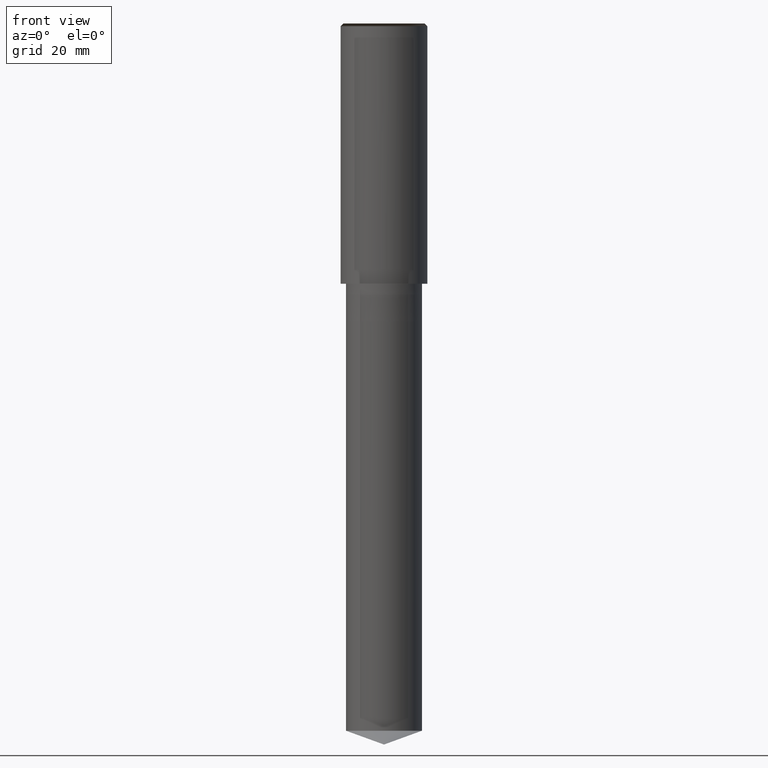
[diagram: clean part render]
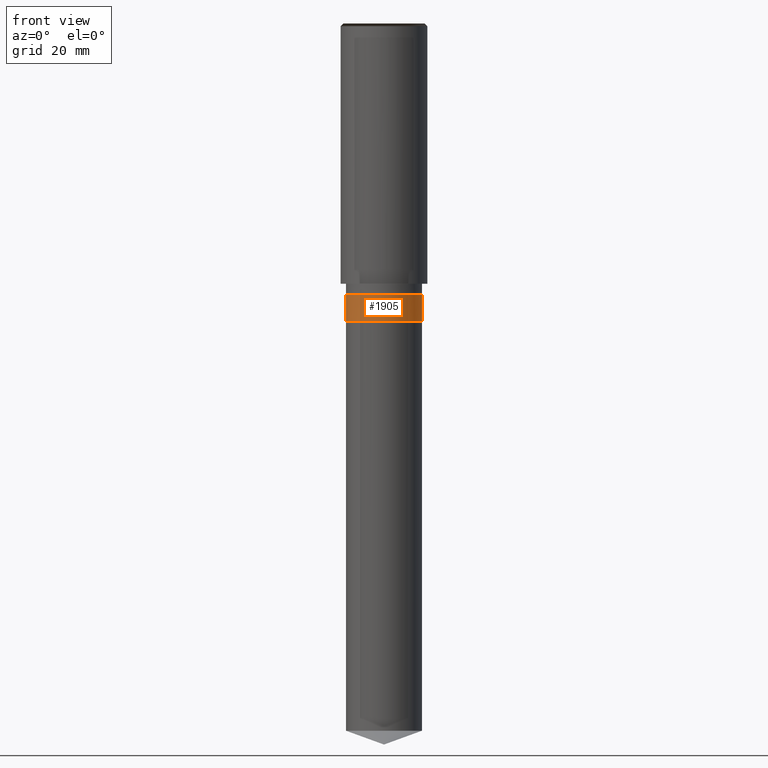
[diagram: same view with one face highlighted and labeled with its STEP entity id]
A machine part, front view. The second image highlights one B-rep face of the part: STEP entity #1905.
In plain terms, the highlighted face is a freeform B-spline surface patch.
Its self-contained STEP definition (entity closure, byte-faithful):
#1572=CARTESIAN_POINT('',(7.0,0.0,-7.0));
#1576=CARTESIAN_POINT('',(-7.0,0.0,-7.0));
#1581=CARTESIAN_POINT('',(-7.0,-7.0,-7.0));
#1582=CARTESIAN_POINT('',(0.0,-7.0,-7.0));
#1583=CARTESIAN_POINT('',(7.0,-7.0,-7.0));
#1584=CARTESIAN_POINT('',(7.0,0.0,-2.0));
#1588=CARTESIAN_POINT('',(-7.0,0.0,-2.0));
#1610=CARTESIAN_POINT('',(-7.0,-7.0,-2.0));
#1611=CARTESIAN_POINT('',(0.0,-7.0,-2.0));
#1612=CARTESIAN_POINT('',(7.0,-7.0,-2.0));
#1886=(
BOUNDED_SURFACE()
B_SPLINE_SURFACE(1,2,(
(#1576,#1581,#1582,#1583,#1572),
(#1588,#1610,#1611,#1612,#1584)
), .UNSPECIFIED.,.F.,.F.,.F.)
B_SPLINE_SURFACE_WITH_KNOTS((2,2),(3,2,3),(
0.0,1.0),(
0.0,0.5,1.0), .UNSPECIFIED.)
GEOMETRIC_REPRESENTATION_ITEM()
RATIONAL_B_SPLINE_SURFACE(((1.0,0.707106781187,1.0,0.707106781187,1.0),
(1.0,0.707106781187,1.0,0.707106781187,1.0)
))
REPRESENTATION_ITEM('')
SURFACE()
);
#1887=(
BOUNDED_CURVE()
B_SPLINE_CURVE(2,(#1572,#1583,#1582,#1581,#1576),.UNSPECIFIED.,.F.,.F.)
B_SPLINE_CURVE_WITH_KNOTS((3,2,3),
(0.0,0.5,1.0),.UNSPECIFIED.)
CURVE()
GEOMETRIC_REPRESENTATION_ITEM()
RATIONAL_B_SPLINE_CURVE((1.0,0.707106781187,1.0,0.707106781187,1.0))
REPRESENTATION_ITEM('')
);
#1888=(
BOUNDED_CURVE()
B_SPLINE_CURVE(1,(#1576,#1588),.UNSPECIFIED.,.F.,.F.)
B_SPLINE_CURVE_WITH_KNOTS((2,2),
(0.0,1.0),.UNSPECIFIED.)
CURVE()
GEOMETRIC_REPRESENTATION_ITEM()
RATIONAL_B_SPLINE_CURVE((1.0,1.0))
REPRESENTATION_ITEM('')
);
#1889=(
BOUNDED_CURVE()
B_SPLINE_CURVE(2,(#1588,#1610,#1611,#1612,#1584),.UNSPECIFIED.,.F.,.F.)
B_SPLINE_CURVE_WITH_KNOTS((3,2,3),
(0.0,0.5,1.0),.UNSPECIFIED.)
CURVE()
GEOMETRIC_REPRESENTATION_ITEM()
RATIONAL_B_SPLINE_CURVE((1.0,0.707106781187,1.0,0.707106781187,1.0))
REPRESENTATION_ITEM('')
);
#1890=(
BOUNDED_CURVE()
B_SPLINE_CURVE(1,(#1584,#1572),.UNSPECIFIED.,.F.,.F.)
B_SPLINE_CURVE_WITH_KNOTS((2,2),
(0.0,1.0),.UNSPECIFIED.)
CURVE()
GEOMETRIC_REPRESENTATION_ITEM()
RATIONAL_B_SPLINE_CURVE((1.0,1.0))
REPRESENTATION_ITEM('')
);
#1891=VERTEX_POINT('',#1572);
#1892=VERTEX_POINT('',#1576);
#1893=VERTEX_POINT('',#1584);
#1894=VERTEX_POINT('',#1588);
#1895=EDGE_CURVE('',#1891,#1892,#1887,.T.);
#1896=EDGE_CURVE('',#1892,#1894,#1888,.T.);
#1897=EDGE_CURVE('',#1894,#1893,#1889,.T.);
#1898=EDGE_CURVE('',#1893,#1891,#1890,.T.);
#1899=ORIENTED_EDGE('',*,*,#1895,.T.);
#1900=ORIENTED_EDGE('',*,*,#1896,.T.);
#1901=ORIENTED_EDGE('',*,*,#1897,.T.);
#1902=ORIENTED_EDGE('',*,*,#1898,.T.);
#1903=EDGE_LOOP('',(#1899,#1900,#1901,#1902));
#1904=FACE_OUTER_BOUND('',#1903,.T.);
#1905=ADVANCED_FACE('',(#1904),#1886,.T.);